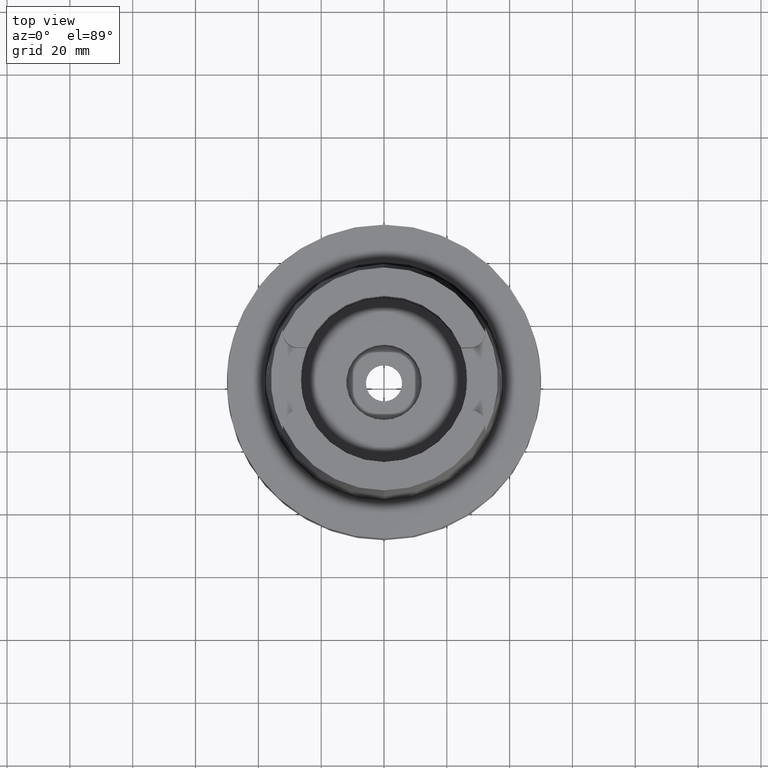
[diagram: clean part render]
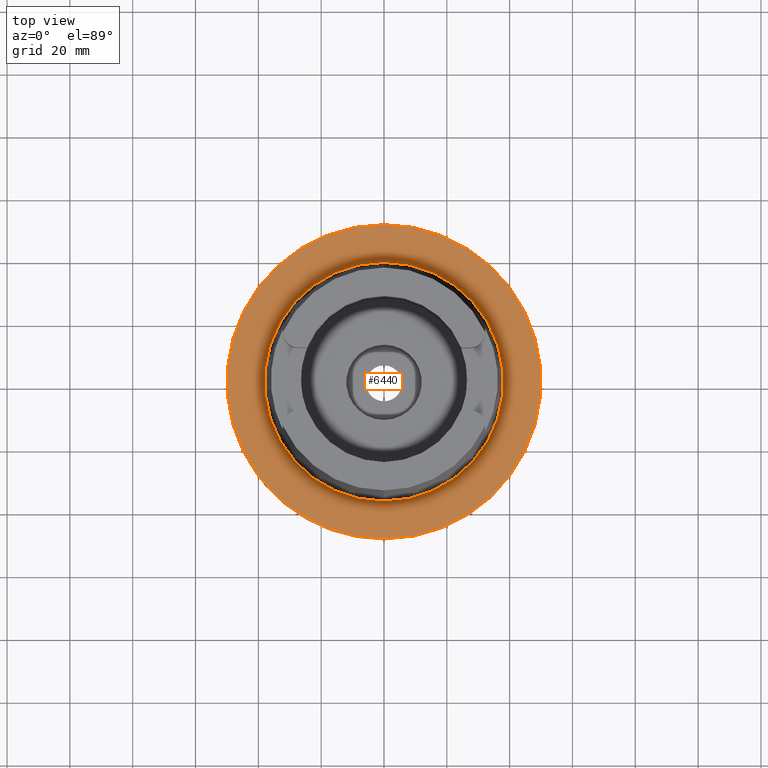
[diagram: same view with one face highlighted and labeled with its STEP entity id]
A machine part, top view. The second image highlights one B-rep face of the part: STEP entity #6440.
In plain terms, the highlighted planar face has unit normal (0, 0, 1).
Its self-contained STEP definition (entity closure, byte-faithful):
#3370=CARTESIAN_POINT('',(0.E0,0.E0,0.E0));
#3371=DIRECTION('',(0.E0,0.E0,-1.E0));
#3372=DIRECTION('',(0.E0,-1.E0,0.E0));
#3373=AXIS2_PLACEMENT_3D('',#3370,#3371,#3372);
#3378=CARTESIAN_POINT('',(0.E0,0.E0,0.E0));
#3379=DIRECTION('',(0.E0,0.E0,-1.E0));
#3380=DIRECTION('',(0.E0,1.E0,0.E0));
#3381=AXIS2_PLACEMENT_3D('',#3378,#3379,#3380);
#3386=CARTESIAN_POINT('',(0.E0,0.E0,1.136868377216E-13));
#3387=DIRECTION('',(0.E0,0.E0,1.E0));
#3388=DIRECTION('',(0.E0,-1.E0,0.E0));
#3389=AXIS2_PLACEMENT_3D('',#3386,#3387,#3388);
#3394=CARTESIAN_POINT('',(0.E0,0.E0,1.136868377216E-13));
#3395=DIRECTION('',(0.E0,0.E0,1.E0));
#3396=DIRECTION('',(0.E0,1.E0,0.E0));
#3397=AXIS2_PLACEMENT_3D('',#3394,#3395,#3396);
#3629=CARTESIAN_POINT('',(0.E0,-3.800001658252E1,2.273736754432E-13));
#3630=VERTEX_POINT('',#3629);
#3631=CARTESIAN_POINT('',(0.E0,3.800001658252E1,1.136868377216E-13));
#3632=VERTEX_POINT('',#3631);
#4072=CARTESIAN_POINT('',(0.E0,5.E1,0.E0));
#4073=VERTEX_POINT('',#4072);
#4074=CARTESIAN_POINT('',(0.E0,-5.E1,0.E0));
#4075=VERTEX_POINT('',#4074);
#6427=CARTESIAN_POINT('',(0.E0,0.E0,0.E0));
#6428=DIRECTION('',(0.E0,0.E0,1.E0));
#6429=DIRECTION('',(0.E0,1.E0,0.E0));
#6430=AXIS2_PLACEMENT_3D('',#6427,#6428,#6429);
#6431=PLANE('',#6430);
#6432=ORIENTED_EDGE('',*,*,#6192,.T.);
#6433=ORIENTED_EDGE('',*,*,#6301,.T.);
#6434=EDGE_LOOP('',(#6432,#6433));
#6435=FACE_OUTER_BOUND('',#6434,.F.);
#6436=ORIENTED_EDGE('',*,*,#4295,.T.);
#6437=ORIENTED_EDGE('',*,*,#4254,.T.);
#6438=EDGE_LOOP('',(#6436,#6437));
#6439=FACE_BOUND('',#6438,.F.);
#3374=CIRCLE('',#3373,5.E1);
#3382=CIRCLE('',#3381,5.E1);
#3390=CIRCLE('',#3389,3.800001658252E1);
#3398=CIRCLE('',#3397,3.800001658252E1);
#4254=EDGE_CURVE('',#3632,#3630,#3398,.T.);
#4295=EDGE_CURVE('',#3630,#3632,#3390,.T.);
#6192=EDGE_CURVE('',#4075,#4073,#3374,.T.);
#6301=EDGE_CURVE('',#4073,#4075,#3382,.T.);
#6440=ADVANCED_FACE('',(#6435,#6439),#6431,.T.);